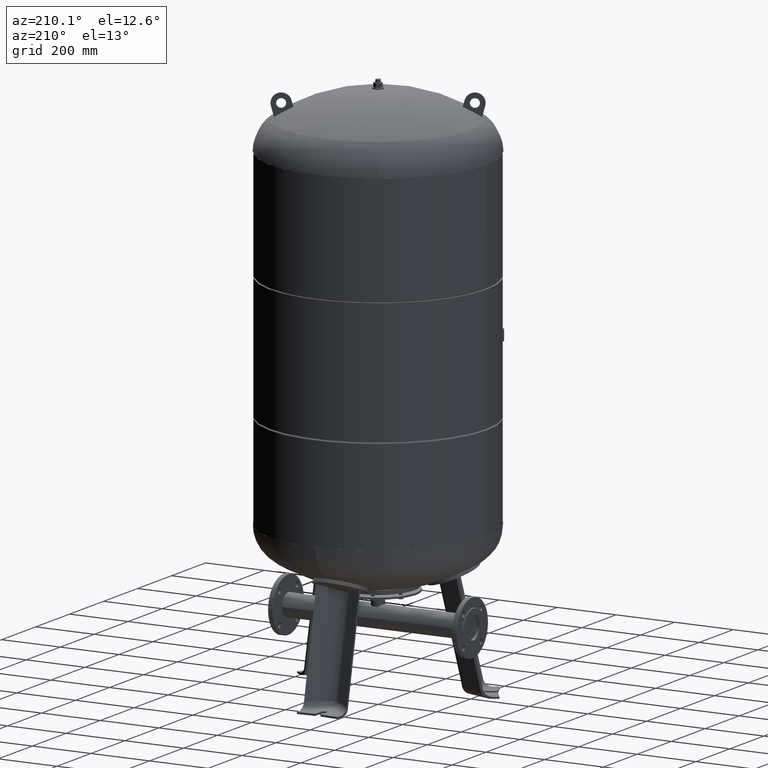
[diagram: clean part render]
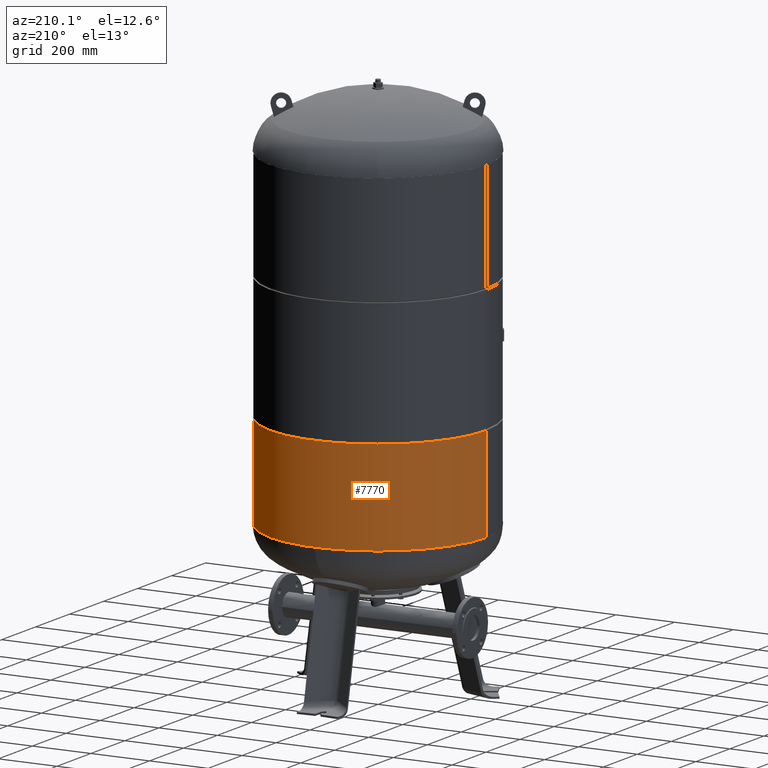
[diagram: same view with one face highlighted and labeled with its STEP entity id]
A machine part, auxiliary view. The second image highlights one B-rep face of the part: STEP entity #7770.
In plain terms, the highlighted cylindrical surface (partial cylindrical patch) has radius 370 mm, axis along (0, 0, 1).
Its self-contained STEP definition (entity closure, byte-faithful):
#7670=CARTESIAN_POINT('',(369.999999999997730,0.0,837.104553026880470));
#7671=VERTEX_POINT('',#7670);
#7687=CARTESIAN_POINT('',(-369.999999999998860,-4.531044E-014,837.104553026880470));
#7688=VERTEX_POINT('',#7687);
#7710=CARTESIAN_POINT('',(369.999999999999940,0.0,514.0));
#7711=VERTEX_POINT('',#7710);
#7712=CARTESIAN_POINT('',(369.999999999997730,0.0,837.104553026880470));
#7713=DIRECTION('',(0.0,0.0,-1.0));
#7714=VECTOR('',#7713,323.104553026880470);
#7715=LINE('',#7712,#7714);
#7716=EDGE_CURVE('',#7671,#7711,#7715,.T.);
#7719=CARTESIAN_POINT('',(-369.999999999998860,-4.531044E-014,514.0));
#7720=VERTEX_POINT('',#7719);
#7721=CARTESIAN_POINT('',(-369.999999999998860,-4.531044E-014,837.104553026880470));
#7722=DIRECTION('',(0.0,0.0,-1.0));
#7723=VECTOR('',#7722,323.104553026880470);
#7724=LINE('',#7721,#7723);
#7725=EDGE_CURVE('',#7688,#7720,#7724,.T.);
#7742=CARTESIAN_POINT('',(-1.668796E-014,0.0,514.0));
#7743=DIRECTION('',(0.0,0.0,1.0));
#7744=DIRECTION('',(1.0,0.0,0.0));
#7745=AXIS2_PLACEMENT_3D('',#7742,#7743,#7744);
#7746=CIRCLE('',#7745,369.999999999999940);
#7747=EDGE_CURVE('',#7711,#7720,#7746,.T.);
#7753=CARTESIAN_POINT('',(-1.190362E-014,0.0,675.552276513440120));
#7754=DIRECTION('',(2.961484E-017,0.0,1.0));
#7755=DIRECTION('',(1.0,0.0,0.0));
#7756=AXIS2_PLACEMENT_3D('',#7753,#7754,#7755);
#7757=CYLINDRICAL_SURFACE('',#7756,369.999999999998860);
#7758=ORIENTED_EDGE('',*,*,#7716,.T.);
#7759=ORIENTED_EDGE('',*,*,#7747,.T.);
#7760=ORIENTED_EDGE('',*,*,#7725,.F.);
#7761=CARTESIAN_POINT('',(-7.119274E-015,0.0,837.104553026880470));
#7762=DIRECTION('',(0.0,0.0,1.0));
#7763=DIRECTION('',(1.0,0.0,0.0));
#7764=AXIS2_PLACEMENT_3D('',#7761,#7762,#7763);
#7765=CIRCLE('',#7764,369.999999999997730);
#7766=EDGE_CURVE('',#7671,#7688,#7765,.T.);
#7767=ORIENTED_EDGE('',*,*,#7766,.F.);
#7768=EDGE_LOOP('',(#7758,#7759,#7760,#7767));
#7769=FACE_OUTER_BOUND('',#7768,.T.);
#7770=ADVANCED_FACE('',(#7769),#7757,.T.);